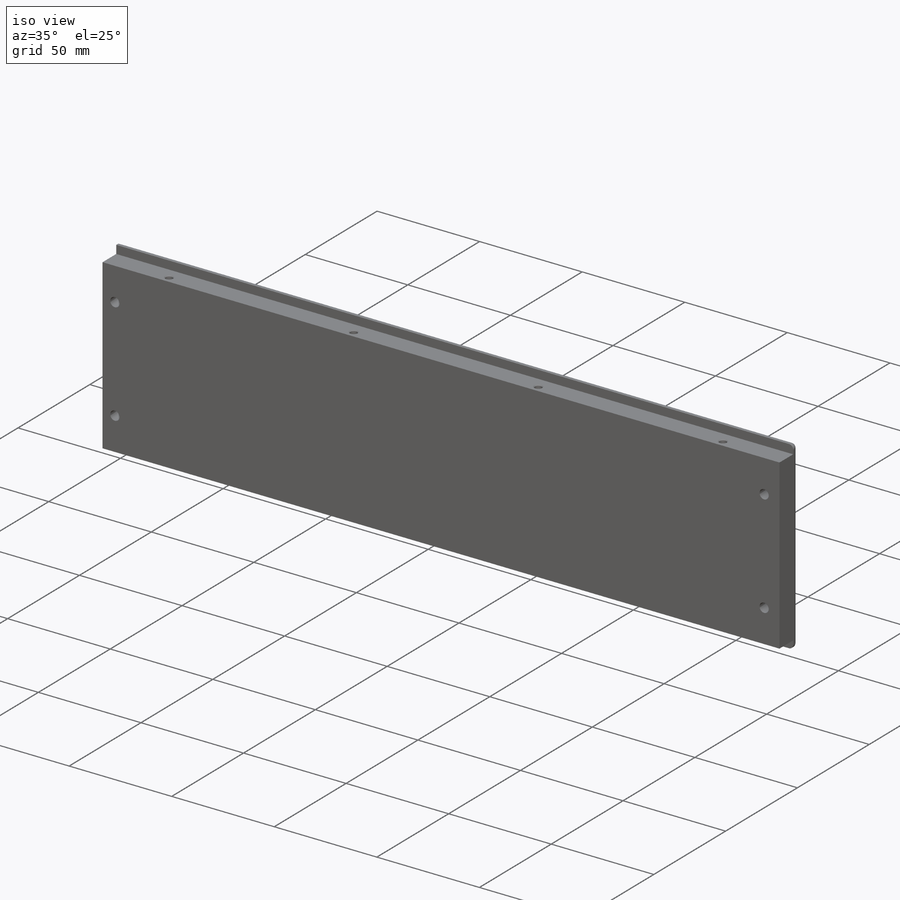
[diagram: iso view]
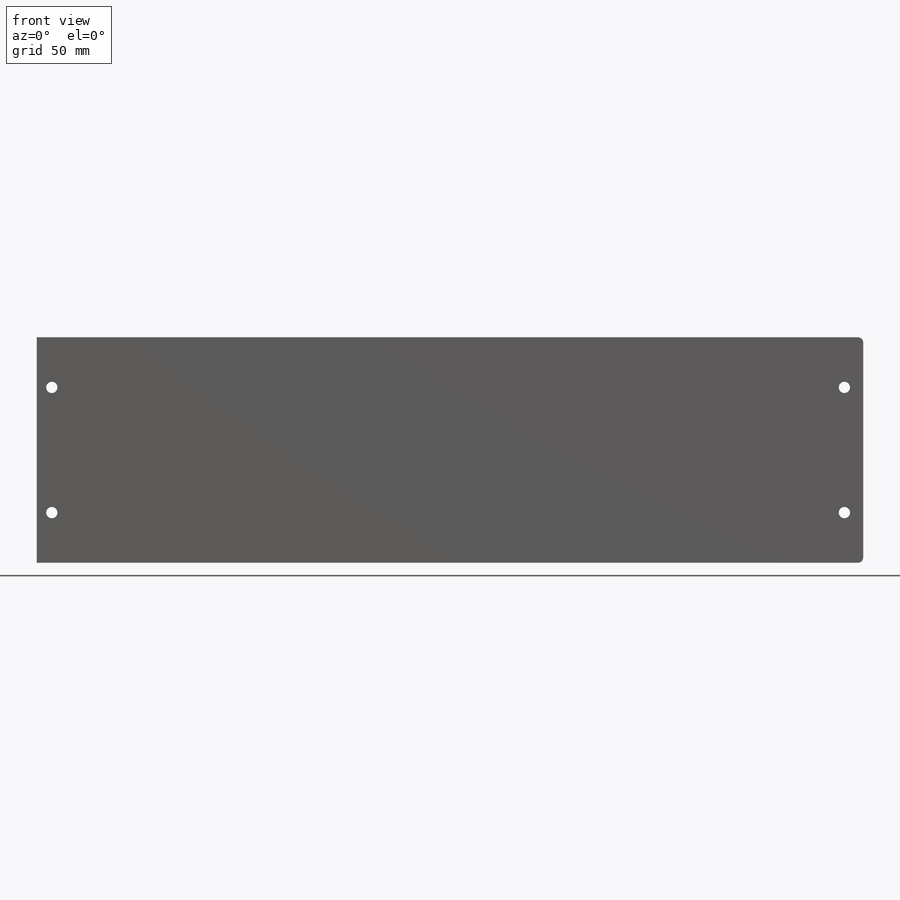
[diagram: front view]
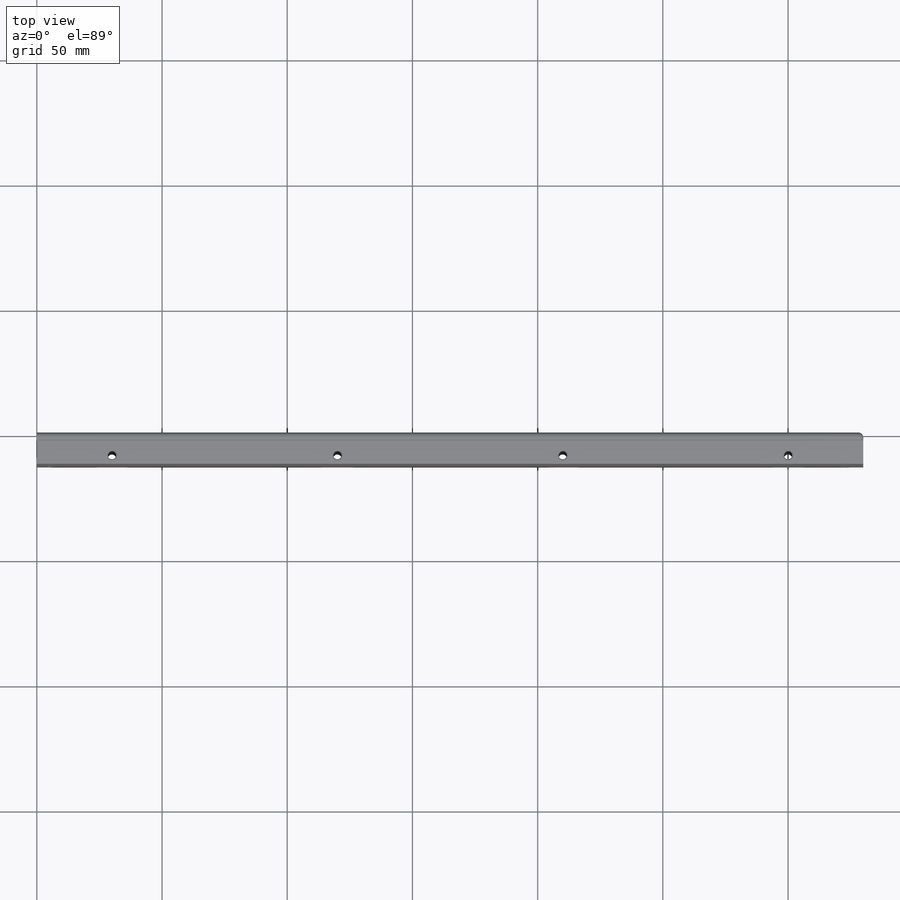
[diagram: top view]
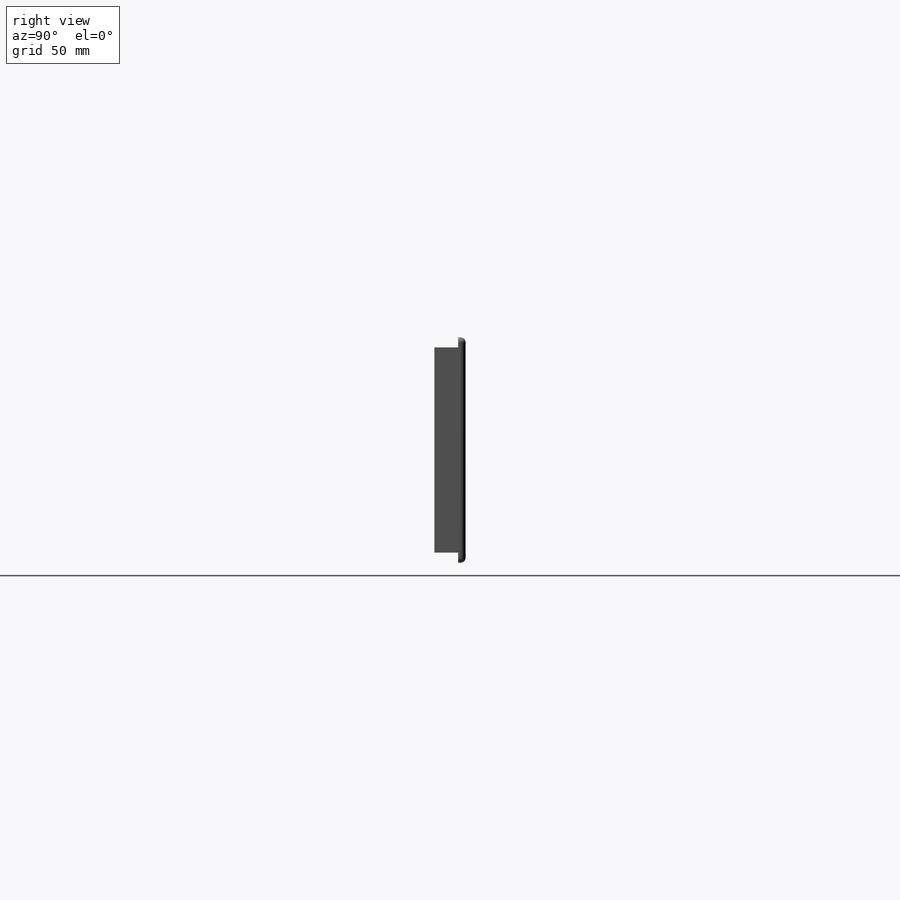
[diagram: right view]
SOLIDWORKS PART (.sldprt)
format: sldprt  version: not decoded by parser v0  size: 345,600 bytes
history: native  units: mm
features: sketch x6, thread x4, plane x3, hole x2, fillet x2, material x1, extrude x1, cut_extrude x1 (+8 scaffold rows collapsed)
feature tree (28):
  scaffold x8  (default folders/planes/origin — collapsed)
  material  "6061 合金"
  plane  "前基準面"
  plane  "上基準面"
  plane  "右基準面"
  sketch  "草圖1"  dims[D1=330.0mm D2=90.0mm]
  extrude  "填料-伸長1"  Depth=12.5mm
  sketch  "草圖2"  dims[D1=3.0mm D2=3.0mm D3=4.0mm D4=4.0mm]
  cut_extrude  "除料-伸長1"  [1 undecoded]
  hole  "M4 六角凹錐坑螺釘的錐孔1"  [1 undecoded]
  sketch  "草圖4"  dims[D1=7.5mm D2=20.0mm D3=20.0mm D4=6.0mm]
  sketch  "草圖3"  dims[hole-wizard template sketch: 54 standard entries collapsed; hole parameters kept: c17.貫穿孔直徑=4.5mm c17.貫穿孔深度=12.5mm c17.近端錐孔直徑=8.96mm c17.D4=~3.666174mm c17.近端錐孔角度=90.0deg]
  hole  "M4 螺紋孔1"  [1 undecoded]
  sketch  "草圖6"  dims[D1=90.0mm D2=90.0mm D3=90.0mm D4=30.0mm D5=6.0mm]
  sketch  "草圖5"  dims[hole-wizard template sketch: 54 standard entries collapsed; hole parameters kept: c17.貫穿螺孔鑽直徑=3.3mm c17.貫穿螺孔鑽深度=86.0mm c17.近端錐孔直徑=4.05mm c17.D4=~3.666174mm c17.近端錐孔角度=90.0deg]
  thread  "鑽孔螺紋1"  Diameter=4mm  [1 undecoded]
  thread  "鑽孔螺紋2"  Diameter=4mm  [1 undecoded]
  thread  "鑽孔螺紋3"  Diameter=4mm  [1 undecoded]
  thread  "鑽孔螺紋4"  Diameter=4mm  [1 undecoded]
  fillet  "圓角2"  Radius=2mm
  fillet  "圓角3"  Radius=2mm
decode coverage: 13 of 16 modeling features carry decoded parameters
note: ~ marks probable driven/reference dimensions
note: 7 parameter values undecoded
summary: no parameter record found for 3 features
note: suppression state not decoded; provenance and decode notes live in map.json
